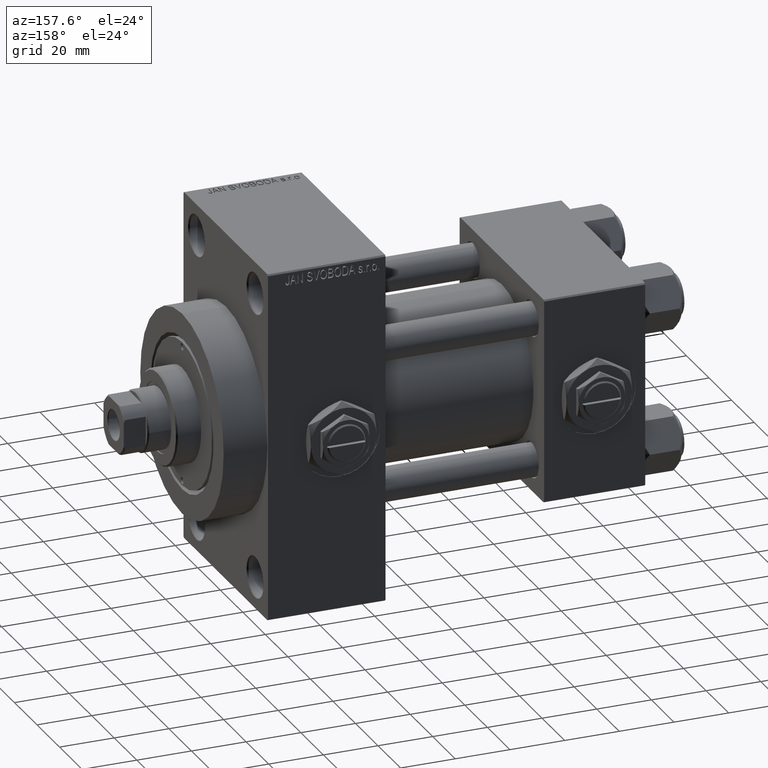
[diagram: clean part render]
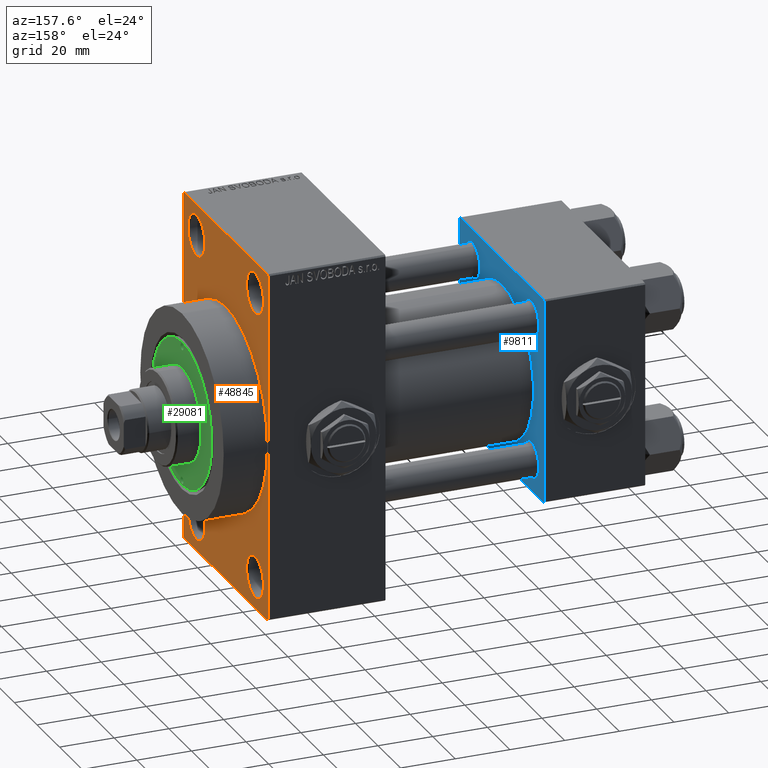
[diagram: same view with three faces highlighted in distinct colors, each labeled with its STEP entity id]
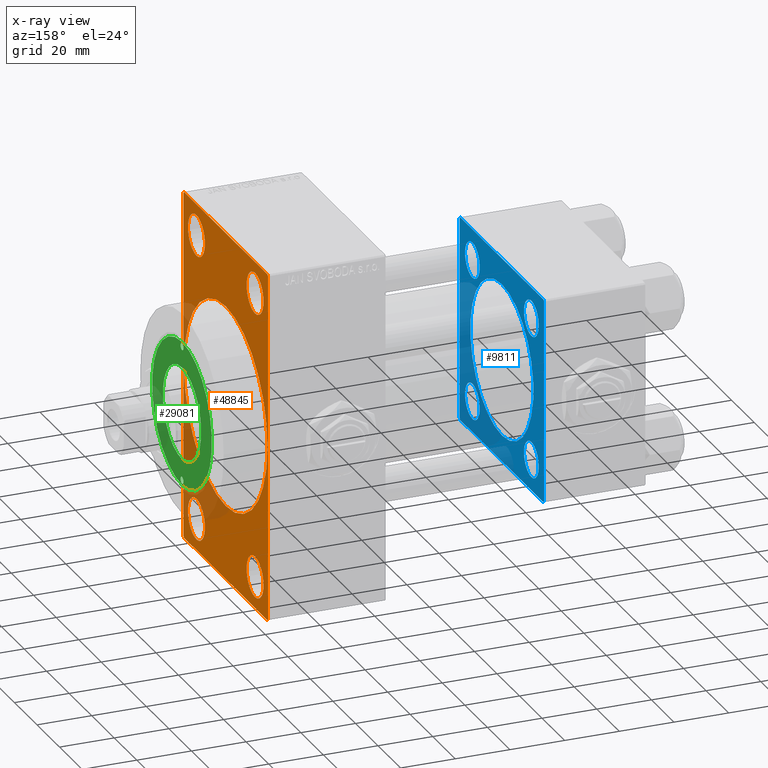
[diagram: x-ray of the same camera — body ghosted, the three highlighted faces saturated]
A machine part, auxiliary view with three faces highlighted in distinct colors.
The next image is the same camera in x-ray (body ghosted, the three faces saturated) — at least one of them is partly hidden behind the body in this view.
Their STEP definitions:

[orange] entity #48845 — the highlighted planar face has unit normal (-1, 0, 0).
#360 = VECTOR ( 'NONE', #18469, 1000.000000000000000 ) ;
#576 = CARTESIAN_POINT ( 'NONE',  ( 138.0000000000000000, -36.99999999999995737, 63.99999999999997158 ) ) ;
#1019 = FACE_BOUND ( 'NONE', #38938, .T. ) ;
#1040 = DIRECTION ( 'NONE',  ( 1.000000000000000000, 0.000000000000000000, 0.000000000000000000 ) ) ;
#1468 = VERTEX_POINT ( 'NONE', #11241 ) ;
#1828 = EDGE_LOOP ( 'NONE', ( #36572, #6687 ) ) ;
#2234 = CARTESIAN_POINT ( 'NONE',  ( 138.0000000000000000, 36.99999999999997158, 63.99999999999998579 ) ) ;
#2302 = VERTEX_POINT ( 'NONE', #34772 ) ;
#3524 = EDGE_CURVE ( 'NONE', #41724, #32050, #30687, .T. ) ;
#3648 = LINE ( 'NONE', #33933, #15017 ) ;
#3793 = ORIENTED_EDGE ( 'NONE', *, *, #21079, .T. ) ;
#4056 = VECTOR ( 'NONE', #42984, 999.9999999999998863 ) ;
#4461 = CARTESIAN_POINT ( 'NONE',  ( 138.0000000000000000, -36.99999999999993605, -64.00000000000001421 ) ) ;
#4527 = FACE_BOUND ( 'NONE', #19885, .T. ) ;
#4776 = FACE_BOUND ( 'NONE', #28141, .T. ) ;
#4916 = CARTESIAN_POINT ( 'NONE',  ( 138.0000000000000000, 26.00000000000000000, 60.00000000000000000 ) ) ;
#5423 = CARTESIAN_POINT ( 'NONE',  ( 138.0000000000000000, 26.00000000000000000, -52.49999999999999289 ) ) ;
#5715 = DIRECTION ( 'NONE',  ( -1.000000000000000000, 0.000000000000000000, -0.000000000000000000 ) ) ;
#5843 = DIRECTION ( 'NONE',  ( -0.000000000000000000, 0.7071067811865573427, 0.7071067811865378028 ) ) ;
#5878 = LINE ( 'NONE', #40393, #36476 ) ;
#6290 = CIRCLE ( 'NONE', #23843, 37.00000000000000000 ) ;
#6687 = ORIENTED_EDGE ( 'NONE', *, *, #26335, .F. ) ;
#6928 = ORIENTED_EDGE ( 'NONE', *, *, #42914, .T. ) ;
#7140 = DIRECTION ( 'NONE',  ( 0.000000000000000000, 0.000000000000000000, 1.000000000000000000 ) ) ;
#7173 = EDGE_CURVE ( 'NONE', #41724, #7918, #5878, .T. ) ;
#7178 = EDGE_CURVE ( 'NONE', #48057, #45820, #14865, .T. ) ;
#7573 = VERTEX_POINT ( 'NONE', #18524 ) ;
#7918 = VERTEX_POINT ( 'NONE', #2234 ) ;
#8529 = VERTEX_POINT ( 'NONE', #21260 ) ;
#8758 = CARTESIAN_POINT ( 'NONE',  ( 138.0000000000000000, 0.000000000000000000, 0.000000000000000000 ) ) ;
#8932 = DIRECTION ( 'NONE',  ( 0.000000000000000000, 0.000000000000000000, 1.000000000000000000 ) ) ;
#9848 = VERTEX_POINT ( 'NONE', #37767 ) ;
#9945 = DIRECTION ( 'NONE',  ( 0.000000000000000000, 0.000000000000000000, 1.000000000000000000 ) ) ;
#10195 = CIRCLE ( 'NONE', #20582, 7.500000000000007105 ) ;
#10752 = ORIENTED_EDGE ( 'NONE', *, *, #14062, .T. ) ;
#10767 = DIRECTION ( 'NONE',  ( -0.000000000000000000, -0.7071067811865524577, -0.7071067811865426878 ) ) ;
#11089 = CIRCLE ( 'NONE', #33500, 7.500000000000007105 ) ;
#11185 = ORIENTED_EDGE ( 'NONE', *, *, #42809, .T. ) ;
#11241 = CARTESIAN_POINT ( 'NONE',  ( 138.0000000000000000, 26.00000000000000000, 44.99999999999998579 ) ) ;
#11892 = CARTESIAN_POINT ( 'NONE',  ( 138.0000000000000000, 26.00000000000000000, -52.49999999999999289 ) ) ;
#11936 = CARTESIAN_POINT ( 'NONE',  ( 138.0000000000000000, -25.99999999999999645, 60.00000000000000711 ) ) ;
#12269 = FACE_OUTER_BOUND ( 'NONE', #44910, .T. ) ;
#12445 = LINE ( 'NONE', #4461, #4056 ) ;
#12565 = VERTEX_POINT ( 'NONE', #16291 ) ;
#13386 = AXIS2_PLACEMENT_3D ( 'NONE', #35904, #36158, #39652 ) ;
#13455 = AXIS2_PLACEMENT_3D ( 'NONE', #38949, #35953, #36199 ) ;
#14062 = EDGE_CURVE ( 'NONE', #45820, #48057, #10195, .T. ) ;
#14452 = AXIS2_PLACEMENT_3D ( 'NONE', #11892, #19894, #35668 ) ;
#14507 = CARTESIAN_POINT ( 'NONE',  ( 138.0000000000000000, -37.49999999999999289, 63.49999999999994316 ) ) ;
#14865 = CIRCLE ( 'NONE', #13386, 7.500000000000007105 ) ;
#14990 = DIRECTION ( 'NONE',  ( -1.000000000000000000, 0.000000000000000000, -0.000000000000000000 ) ) ;
#15017 = VECTOR ( 'NONE', #26907, 1000.000000000000000 ) ;
#15093 = CARTESIAN_POINT ( 'NONE',  ( 138.0000000000000000, -25.99999999999999645, 52.50000000000000000 ) ) ;
#15106 = DIRECTION ( 'NONE',  ( -1.000000000000000000, 0.000000000000000000, -0.000000000000000000 ) ) ;
#15643 = ORIENTED_EDGE ( 'NONE', *, *, #37858, .T. ) ;
#16121 = EDGE_CURVE ( 'NONE', #7918, #34825, #3648, .T. ) ;
#16291 = CARTESIAN_POINT ( 'NONE',  ( 138.0000000000000000, 26.00000000000000000, -44.99999999999998579 ) ) ;
#17149 = DIRECTION ( 'NONE',  ( -1.000000000000000000, 0.000000000000000000, -0.000000000000000000 ) ) ;
#17291 = ORIENTED_EDGE ( 'NONE', *, *, #34773, .F. ) ;
#18004 = ORIENTED_EDGE ( 'NONE', *, *, #22644, .T. ) ;
#18329 = ORIENTED_EDGE ( 'NONE', *, *, #7178, .T. ) ;
#18469 = DIRECTION ( 'NONE',  ( 0.000000000000000000, 0.000000000000000000, -1.000000000000000000 ) ) ;
#18524 = CARTESIAN_POINT ( 'NONE',  ( 138.0000000000000000, -37.49999999999999289, 63.49999999999994316 ) ) ;
#19267 = CIRCLE ( 'NONE', #48851, 7.500000000000007105 ) ;
#19512 = DIRECTION ( 'NONE',  ( 1.000000000000000000, 0.000000000000000000, 0.000000000000000000 ) ) ;
#19885 = EDGE_LOOP ( 'NONE', ( #38308, #15643 ) ) ;
#19894 = DIRECTION ( 'NONE',  ( -1.000000000000000000, 0.000000000000000000, -0.000000000000000000 ) ) ;
#19916 = VECTOR ( 'NONE', #10767, 1000.000000000000000 ) ;
#20582 = AXIS2_PLACEMENT_3D ( 'NONE', #15093, #26384, #23619 ) ;
#20686 = CARTESIAN_POINT ( 'NONE',  ( 138.0000000000000000, 37.49999999999999289, -63.50000000000001421 ) ) ;
#21079 = EDGE_CURVE ( 'NONE', #9848, #2302, #12445, .T. ) ;
#21260 = CARTESIAN_POINT ( 'NONE',  ( 138.0000000000000000, -25.99999999999999645, -44.99999999999998579 ) ) ;
#21501 = AXIS2_PLACEMENT_3D ( 'NONE', #5423, #17149, #8932 ) ;
#21771 = CARTESIAN_POINT ( 'NONE',  ( 138.0000000000000000, 0.000000000000000000, 37.00000000000000000 ) ) ;
#21927 = EDGE_CURVE ( 'NONE', #49408, #8529, #49511, .T. ) ;
#22370 = CARTESIAN_POINT ( 'NONE',  ( 138.0000000000000000, 37.49999999999999289, -64.00000000000000000 ) ) ;
#22644 = EDGE_CURVE ( 'NONE', #23746, #32050, #39865, .T. ) ;
#22858 = LINE ( 'NONE', #22370, #44538 ) ;
#23264 = CIRCLE ( 'NONE', #14452, 7.500000000000007105 ) ;
#23619 = DIRECTION ( 'NONE',  ( 0.000000000000000000, 0.000000000000000000, 1.000000000000000000 ) ) ;
#23746 = VERTEX_POINT ( 'NONE', #24019 ) ;
#23843 = AXIS2_PLACEMENT_3D ( 'NONE', #31567, #1040, #35823 ) ;
#24019 = CARTESIAN_POINT ( 'NONE',  ( 138.0000000000000000, 36.99999999999999289, -64.00000000000000000 ) ) ;
#24624 = LINE ( 'NONE', #14507, #19916 ) ;
#25133 = VECTOR ( 'NONE', #45711, 1000.000000000000000 ) ;
#25249 = EDGE_CURVE ( 'NONE', #12565, #30536, #23264, .T. ) ;
#26326 = VECTOR ( 'NONE', #5843, 1000.000000000000000 ) ;
#26335 = EDGE_CURVE ( 'NONE', #46900, #44375, #40885, .T. ) ;
#26384 = DIRECTION ( 'NONE',  ( -1.000000000000000000, 0.000000000000000000, -0.000000000000000000 ) ) ;
#26702 = EDGE_LOOP ( 'NONE', ( #40057, #45994 ) ) ;
#26907 = DIRECTION ( 'NONE',  ( 0.000000000000000000, -1.000000000000000000, -1.850371707708594563E-16 ) ) ;
#28077 = AXIS2_PLACEMENT_3D ( 'NONE', #8758, #19512, #31530 ) ;
#28141 = EDGE_LOOP ( 'NONE', ( #10752, #18329 ) ) ;
#29252 = LINE ( 'NONE', #49003, #360 ) ;
#30536 = VERTEX_POINT ( 'NONE', #36928 ) ;
#30687 = LINE ( 'NONE', #45954, #25133 ) ;
#31312 = CARTESIAN_POINT ( 'NONE',  ( 138.0000000000000000, 4.531193156845206793E-15, -37.00000000000000000 ) ) ;
#31530 = DIRECTION ( 'NONE',  ( 0.000000000000000000, 0.000000000000000000, -1.000000000000000000 ) ) ;
#31567 = CARTESIAN_POINT ( 'NONE',  ( 138.0000000000000000, 0.000000000000000000, 0.000000000000000000 ) ) ;
#31950 = AXIS2_PLACEMENT_3D ( 'NONE', #43494, #5715, #9945 ) ;
#32050 = VERTEX_POINT ( 'NONE', #20686 ) ;
#32595 = ORIENTED_EDGE ( 'NONE', *, *, #7173, .T. ) ;
#32638 = DIRECTION ( 'NONE',  ( 0.000000000000000000, -0.7071067811865672237, 0.7071067811865279218 ) ) ;
#32987 = EDGE_CURVE ( 'NONE', #7573, #9848, #29252, .T. ) ;
#33201 = ORIENTED_EDGE ( 'NONE', *, *, #16121, .T. ) ;
#33500 = AXIS2_PLACEMENT_3D ( 'NONE', #34043, #14990, #45303 ) ;
#33826 = ORIENTED_EDGE ( 'NONE', *, *, #32987, .T. ) ;
#33933 = CARTESIAN_POINT ( 'NONE',  ( 138.0000000000000000, 37.50000000000000000, 63.99999999999998579 ) ) ;
#34043 = CARTESIAN_POINT ( 'NONE',  ( 138.0000000000000000, -25.99999999999999645, -52.49999999999999289 ) ) ;
#34685 = ORIENTED_EDGE ( 'NONE', *, *, #3524, .F. ) ;
#34772 = CARTESIAN_POINT ( 'NONE',  ( 138.0000000000000000, -36.99999999999993605, -64.00000000000001421 ) ) ;
#34773 = EDGE_CURVE ( 'NONE', #23746, #2302, #22858, .T. ) ;
#34825 = VERTEX_POINT ( 'NONE', #576 ) ;
#35052 = DIRECTION ( 'NONE',  ( -1.000000000000000000, 0.000000000000000000, -0.000000000000000000 ) ) ;
#35556 = CARTESIAN_POINT ( 'NONE',  ( 138.0000000000000000, 0.000000000000000000, 0.000000000000000000 ) ) ;
#35668 = DIRECTION ( 'NONE',  ( 0.000000000000000000, 0.000000000000000000, 1.000000000000000000 ) ) ;
#35823 = DIRECTION ( 'NONE',  ( 0.000000000000000000, 0.000000000000000000, -1.000000000000000000 ) ) ;
#35904 = CARTESIAN_POINT ( 'NONE',  ( 138.0000000000000000, -25.99999999999999645, 52.50000000000000000 ) ) ;
#35953 = DIRECTION ( 'NONE',  ( -1.000000000000000000, 0.000000000000000000, -0.000000000000000000 ) ) ;
#36158 = DIRECTION ( 'NONE',  ( -1.000000000000000000, 0.000000000000000000, -0.000000000000000000 ) ) ;
#36199 = DIRECTION ( 'NONE',  ( 0.000000000000000000, 0.000000000000000000, 1.000000000000000000 ) ) ;
#36359 = CARTESIAN_POINT ( 'NONE',  ( 138.0000000000000000, -25.99999999999999645, 44.99999999999999289 ) ) ;
#36476 = VECTOR ( 'NONE', #32638, 1000.000000000000000 ) ;
#36572 = ORIENTED_EDGE ( 'NONE', *, *, #40999, .F. ) ;
#36928 = CARTESIAN_POINT ( 'NONE',  ( 138.0000000000000000, 26.00000000000000000, -60.00000000000000000 ) ) ;
#37638 = DIRECTION ( 'NONE',  ( 0.000000000000000000, -1.000000000000000000, -1.850371707708594563E-16 ) ) ;
#37767 = CARTESIAN_POINT ( 'NONE',  ( 138.0000000000000000, -37.49999999999999289, -63.49999999999997158 ) ) ;
#37858 = EDGE_CURVE ( 'NONE', #44747, #1468, #46222, .T. ) ;
#38308 = ORIENTED_EDGE ( 'NONE', *, *, #47485, .T. ) ;
#38876 = EDGE_CURVE ( 'NONE', #30536, #12565, #43074, .T. ) ;
#38938 = EDGE_LOOP ( 'NONE', ( #46018, #6928 ) ) ;
#38949 = CARTESIAN_POINT ( 'NONE',  ( 138.0000000000000000, 26.00000000000000000, 52.49999999999999289 ) ) ;
#39300 = PLANE ( 'NONE',  #44103 ) ;
#39609 = CARTESIAN_POINT ( 'NONE',  ( 138.0000000000000000, -25.99999999999999645, -60.00000000000000000 ) ) ;
#39652 = DIRECTION ( 'NONE',  ( 0.000000000000000000, 0.000000000000000000, 1.000000000000000000 ) ) ;
#39865 = LINE ( 'NONE', #47863, #26326 ) ;
#40057 = ORIENTED_EDGE ( 'NONE', *, *, #38876, .T. ) ;
#40393 = CARTESIAN_POINT ( 'NONE',  ( 138.0000000000000000, 36.99999999999997158, 63.99999999999998579 ) ) ;
#40885 = CIRCLE ( 'NONE', #28077, 37.00000000000000000 ) ;
#40999 = EDGE_CURVE ( 'NONE', #44375, #46900, #6290, .T. ) ;
#41724 = VERTEX_POINT ( 'NONE', #49347 ) ;
#41915 = CARTESIAN_POINT ( 'NONE',  ( 138.0000000000000000, 26.00000000000000000, 52.49999999999999289 ) ) ;
#42806 = DIRECTION ( 'NONE',  ( -0.000000000000000000, 0.000000000000000000, 1.000000000000000000 ) ) ;
#42809 = EDGE_CURVE ( 'NONE', #34825, #7573, #24624, .T. ) ;
#42914 = EDGE_CURVE ( 'NONE', #8529, #49408, #11089, .T. ) ;
#42984 = DIRECTION ( 'NONE',  ( 0.000000000000000000, 0.7071067811865574537, -0.7071067811865376918 ) ) ;
#43074 = CIRCLE ( 'NONE', #21501, 7.500000000000007105 ) ;
#43494 = CARTESIAN_POINT ( 'NONE',  ( 138.0000000000000000, -25.99999999999999645, -52.49999999999999289 ) ) ;
#44103 = AXIS2_PLACEMENT_3D ( 'NONE', #35556, #35052, #42806 ) ;
#44375 = VERTEX_POINT ( 'NONE', #21771 ) ;
#44538 = VECTOR ( 'NONE', #37638, 1000.000000000000000 ) ;
#44747 = VERTEX_POINT ( 'NONE', #4916 ) ;
#44910 = EDGE_LOOP ( 'NONE', ( #33826, #3793, #17291, #18004, #34685, #32595, #33201, #11185 ) ) ;
#45303 = DIRECTION ( 'NONE',  ( 0.000000000000000000, 0.000000000000000000, 1.000000000000000000 ) ) ;
#45711 = DIRECTION ( 'NONE',  ( 0.000000000000000000, -5.421010862427522170E-17, -1.000000000000000000 ) ) ;
#45820 = VERTEX_POINT ( 'NONE', #36359 ) ;
#45954 = CARTESIAN_POINT ( 'NONE',  ( 138.0000000000000000, 37.50000000000000000, 63.99999999999998579 ) ) ;
#45994 = ORIENTED_EDGE ( 'NONE', *, *, #25249, .T. ) ;
#46018 = ORIENTED_EDGE ( 'NONE', *, *, #21927, .T. ) ;
#46066 = FACE_BOUND ( 'NONE', #26702, .T. ) ;
#46222 = CIRCLE ( 'NONE', #13455, 7.500000000000007105 ) ;
#46556 = FACE_BOUND ( 'NONE', #1828, .T. ) ;
#46900 = VERTEX_POINT ( 'NONE', #31312 ) ;
#47485 = EDGE_CURVE ( 'NONE', #1468, #44747, #19267, .T. ) ;
#47863 = CARTESIAN_POINT ( 'NONE',  ( 138.0000000000000000, 37.49999999999999289, -63.50000000000001421 ) ) ;
#48057 = VERTEX_POINT ( 'NONE', #11936 ) ;
#48845 = ADVANCED_FACE ( 'NONE', ( #4776, #1019, #46066, #4527, #46556, #12269 ), #39300, .F. ) ;
#48851 = AXIS2_PLACEMENT_3D ( 'NONE', #41915, #15106, #7140 ) ;
#49003 = CARTESIAN_POINT ( 'NONE',  ( 138.0000000000000000, -37.49999999999999289, 63.99999999999997158 ) ) ;
#49347 = CARTESIAN_POINT ( 'NONE',  ( 138.0000000000000000, 37.50000000000000000, 63.49999999999998579 ) ) ;
#49408 = VERTEX_POINT ( 'NONE', #39609 ) ;
#49511 = CIRCLE ( 'NONE', #31950, 7.500000000000007105 ) ;

[blue] entity #9811 — the highlighted planar face has unit normal (-1, 0, 0).
#37 = VERTEX_POINT ( 'NONE', #31503 ) ;
#134 = CARTESIAN_POINT ( 'NONE',  ( 37.00000000000000000, 8.269258236473776482E-16, -28.00000000000000000 ) ) ;
#382 = DIRECTION ( 'NONE',  ( 0.000000000000000000, 0.000000000000000000, 1.000000000000000000 ) ) ;
#725 = DIRECTION ( 'NONE',  ( 0.000000000000000000, 0.000000000000000000, 1.000000000000000000 ) ) ;
#954 = DIRECTION ( 'NONE',  ( 0.000000000000000000, 0.000000000000000000, 1.000000000000000000 ) ) ;
#1087 = VERTEX_POINT ( 'NONE', #21329 ) ;
#1208 = ORIENTED_EDGE ( 'NONE', *, *, #35761, .T. ) ;
#1439 = ORIENTED_EDGE ( 'NONE', *, *, #35737, .T. ) ;
#1570 = ORIENTED_EDGE ( 'NONE', *, *, #44514, .T. ) ;
#1682 = EDGE_LOOP ( 'NONE', ( #1570, #11435 ) ) ;
#2515 = CARTESIAN_POINT ( 'NONE',  ( 37.00000000000000000, -2.602085213965210642E-15, 28.00000000000000000 ) ) ;
#2532 = LINE ( 'NONE', #33799, #2980 ) ;
#2980 = VECTOR ( 'NONE', #21543, 1000.000000000000114 ) ;
#3361 = ORIENTED_EDGE ( 'NONE', *, *, #21063, .T. ) ;
#3730 = DIRECTION ( 'NONE',  ( -1.000000000000000000, 0.000000000000000000, -0.000000000000000000 ) ) ;
#3999 = AXIS2_PLACEMENT_3D ( 'NONE', #4725, #49518, #19978 ) ;
#4055 = CARTESIAN_POINT ( 'NONE',  ( 37.00000000000000000, 26.14999999999999858, -19.65000000000000213 ) ) ;
#4146 = DIRECTION ( 'NONE',  ( 1.000000000000000000, -0.000000000000000000, 0.000000000000000000 ) ) ;
#4186 = VERTEX_POINT ( 'NONE', #4055 ) ;
#4269 = CARTESIAN_POINT ( 'NONE',  ( 37.00000000000000000, 37.49999999999999289, 37.00000000000000000 ) ) ;
#4725 = CARTESIAN_POINT ( 'NONE',  ( 37.00000000000000000, 26.14999999999999858, 26.15000000000000213 ) ) ;
#5705 = EDGE_CURVE ( 'NONE', #26389, #38803, #23636, .T. ) ;
#6788 = EDGE_LOOP ( 'NONE', ( #1208, #1439 ) ) ;
#6944 = CARTESIAN_POINT ( 'NONE',  ( 37.00000000000000000, -37.00000000000002132, -37.50000000000000711 ) ) ;
#7201 = VECTOR ( 'NONE', #42196, 1000.000000000000000 ) ;
#7243 = FACE_BOUND ( 'NONE', #25469, .T. ) ;
#7591 = EDGE_CURVE ( 'NONE', #12818, #19381, #19777, .T. ) ;
#7709 = ORIENTED_EDGE ( 'NONE', *, *, #13628, .T. ) ;
#7940 = CIRCLE ( 'NONE', #19213, 6.500000000000057732 ) ;
#8143 = EDGE_CURVE ( 'NONE', #28828, #46487, #40456, .T. ) ;
#9113 = DIRECTION ( 'NONE',  ( 0.000000000000000000, -0.7071067811865474617, 0.7071067811865474617 ) ) ;
#9811 = ADVANCED_FACE ( 'NONE', ( #7243, #30012, #30253, #45766, #45276, #10988 ), #38007, .F. ) ;
#10002 = DIRECTION ( 'NONE',  ( 0.000000000000000000, -1.000000000000000000, -9.251858538542972814E-17 ) ) ;
#10409 = VERTEX_POINT ( 'NONE', #17125 ) ;
#10948 = CARTESIAN_POINT ( 'NONE',  ( 37.00000000000000000, 37.49999999999999289, -36.99999999999998579 ) ) ;
#10988 = FACE_OUTER_BOUND ( 'NONE', #47695, .T. ) ;
#10995 = CARTESIAN_POINT ( 'NONE',  ( 37.00000000000000000, -26.14999999999999147, 26.15000000000000924 ) ) ;
#11435 = ORIENTED_EDGE ( 'NONE', *, *, #32070, .T. ) ;
#11514 = ORIENTED_EDGE ( 'NONE', *, *, #15388, .T. ) ;
#11957 = VECTOR ( 'NONE', #38355, 1000.000000000000114 ) ;
#12644 = LINE ( 'NONE', #31675, #7201 ) ;
#12818 = VERTEX_POINT ( 'NONE', #23455 ) ;
#12859 = CARTESIAN_POINT ( 'NONE',  ( 37.00000000000000000, 36.99999999999999289, 37.50000000000000000 ) ) ;
#13303 = VECTOR ( 'NONE', #44458, 1000.000000000000000 ) ;
#13628 = EDGE_CURVE ( 'NONE', #38312, #4186, #26160, .T. ) ;
#14237 = EDGE_CURVE ( 'NONE', #37, #47306, #2532, .T. ) ;
#14487 = DIRECTION ( 'NONE',  ( 0.000000000000000000, 0.000000000000000000, 1.000000000000000000 ) ) ;
#14582 = DIRECTION ( 'NONE',  ( 0.000000000000000000, 0.000000000000000000, 1.000000000000000000 ) ) ;
#14995 = DIRECTION ( 'NONE',  ( 0.000000000000000000, 0.000000000000000000, 1.000000000000000000 ) ) ;
#15388 = EDGE_CURVE ( 'NONE', #10409, #28828, #21862, .T. ) ;
#15751 = CIRCLE ( 'NONE', #43765, 6.500000000000064837 ) ;
#16150 = LINE ( 'NONE', #20405, #22389 ) ;
#16438 = VERTEX_POINT ( 'NONE', #41868 ) ;
#16952 = CARTESIAN_POINT ( 'NONE',  ( 37.00000000000000000, 26.14999999999999858, 19.64999999999999858 ) ) ;
#17125 = CARTESIAN_POINT ( 'NONE',  ( 37.00000000000000000, -37.50000000000000711, 36.99999999999999289 ) ) ;
#17361 = CIRCLE ( 'NONE', #37372, 6.500000000000064837 ) ;
#17709 = ORIENTED_EDGE ( 'NONE', *, *, #18479, .F. ) ;
#17782 = DIRECTION ( 'NONE',  ( -1.000000000000000000, 0.000000000000000000, -0.000000000000000000 ) ) ;
#18091 = DIRECTION ( 'NONE',  ( 0.000000000000000000, 9.251858538542971581E-17, -1.000000000000000000 ) ) ;
#18164 = AXIS2_PLACEMENT_3D ( 'NONE', #29063, #17782, #22293 ) ;
#18290 = VERTEX_POINT ( 'NONE', #40721 ) ;
#18479 = EDGE_CURVE ( 'NONE', #26389, #47306, #12644, .T. ) ;
#18594 = EDGE_LOOP ( 'NONE', ( #7709, #38864 ) ) ;
#18973 = DIRECTION ( 'NONE',  ( -0.000000000000000000, 0.000000000000000000, 1.000000000000000000 ) ) ;
#18983 = DIRECTION ( 'NONE',  ( -1.000000000000000000, 0.000000000000000000, -0.000000000000000000 ) ) ;
#19137 = CARTESIAN_POINT ( 'NONE',  ( 37.00000000000000000, -2.602085213965210642E-15, 0.000000000000000000 ) ) ;
#19213 = AXIS2_PLACEMENT_3D ( 'NONE', #38984, #42500, #954 ) ;
#19237 = CARTESIAN_POINT ( 'NONE',  ( 37.00000000000000000, -26.14999999999999147, 26.15000000000000924 ) ) ;
#19381 = VERTEX_POINT ( 'NONE', #40675 ) ;
#19777 = CIRCLE ( 'NONE', #18164, 6.500000000000057732 ) ;
#19978 = DIRECTION ( 'NONE',  ( 0.000000000000000000, 0.000000000000000000, 1.000000000000000000 ) ) ;
#20175 = ORIENTED_EDGE ( 'NONE', *, *, #36402, .F. ) ;
#20405 = CARTESIAN_POINT ( 'NONE',  ( 37.00000000000000000, 37.49999999999999289, 37.50000000000000000 ) ) ;
#21063 = EDGE_CURVE ( 'NONE', #19381, #12818, #7940, .T. ) ;
#21329 = CARTESIAN_POINT ( 'NONE',  ( 37.00000000000000000, -26.14999999999999147, 32.65000000000007674 ) ) ;
#21543 = DIRECTION ( 'NONE',  ( -0.000000000000000000, 0.7071067811865474617, 0.7071067811865474617 ) ) ;
#21862 = LINE ( 'NONE', #25853, #40594 ) ;
#22293 = DIRECTION ( 'NONE',  ( 0.000000000000000000, 0.000000000000000000, 1.000000000000000000 ) ) ;
#22389 = VECTOR ( 'NONE', #46939, 1000.000000000000000 ) ;
#22855 = ORIENTED_EDGE ( 'NONE', *, *, #25612, .F. ) ;
#23455 = CARTESIAN_POINT ( 'NONE',  ( 37.00000000000000000, -26.14999999999999147, -32.65000000000006963 ) ) ;
#23636 = LINE ( 'NONE', #12859, #46781 ) ;
#24608 = DIRECTION ( 'NONE',  ( 0.000000000000000000, 0.000000000000000000, 1.000000000000000000 ) ) ;
#24860 = CARTESIAN_POINT ( 'NONE',  ( 37.00000000000000000, -2.602085213965210642E-15, 0.000000000000000000 ) ) ;
#25441 = ORIENTED_EDGE ( 'NONE', *, *, #40129, .T. ) ;
#25469 = EDGE_LOOP ( 'NONE', ( #29764, #3361 ) ) ;
#25612 = EDGE_CURVE ( 'NONE', #37, #46487, #32780, .T. ) ;
#25853 = CARTESIAN_POINT ( 'NONE',  ( 37.00000000000000000, -37.50000000000000711, 37.49999999999999289 ) ) ;
#26160 = CIRCLE ( 'NONE', #49335, 6.500000000000002665 ) ;
#26389 = VERTEX_POINT ( 'NONE', #4269 ) ;
#26690 = ORIENTED_EDGE ( 'NONE', *, *, #39795, .F. ) ;
#27946 = DIRECTION ( 'NONE',  ( -1.000000000000000000, 0.000000000000000000, -0.000000000000000000 ) ) ;
#28111 = DIRECTION ( 'NONE',  ( 1.000000000000000000, -0.000000000000000000, 0.000000000000000000 ) ) ;
#28197 = CARTESIAN_POINT ( 'NONE',  ( 37.00000000000000000, 26.14999999999999858, 26.15000000000000213 ) ) ;
#28606 = AXIS2_PLACEMENT_3D ( 'NONE', #24860, #28111, #24608 ) ;
#28709 = CIRCLE ( 'NONE', #41509, 28.00000000000000000 ) ;
#28828 = VERTEX_POINT ( 'NONE', #40225 ) ;
#29063 = CARTESIAN_POINT ( 'NONE',  ( 37.00000000000000000, -26.14999999999999147, -26.15000000000000924 ) ) ;
#29192 = CARTESIAN_POINT ( 'NONE',  ( 37.00000000000000000, -37.00000000000002132, -37.50000000000000711 ) ) ;
#29261 = CARTESIAN_POINT ( 'NONE',  ( 37.00000000000000000, 37.49999999999999289, -37.50000000000000000 ) ) ;
#29764 = ORIENTED_EDGE ( 'NONE', *, *, #7591, .T. ) ;
#30012 = FACE_BOUND ( 'NONE', #18594, .T. ) ;
#30253 = FACE_BOUND ( 'NONE', #6788, .T. ) ;
#30779 = CARTESIAN_POINT ( 'NONE',  ( 37.00000000000000000, 26.14999999999999858, -26.15000000000000213 ) ) ;
#31213 = DIRECTION ( 'NONE',  ( 0.000000000000000000, 0.000000000000000000, 1.000000000000000000 ) ) ;
#31253 = DIRECTION ( 'NONE',  ( -1.000000000000000000, 0.000000000000000000, -0.000000000000000000 ) ) ;
#31503 = CARTESIAN_POINT ( 'NONE',  ( 37.00000000000000000, 36.99999999999997868, -37.50000000000000000 ) ) ;
#31675 = CARTESIAN_POINT ( 'NONE',  ( 37.00000000000000000, 37.49999999999999289, 37.50000000000000000 ) ) ;
#31789 = CIRCLE ( 'NONE', #28606, 28.00000000000000000 ) ;
#31962 = CIRCLE ( 'NONE', #3999, 6.500000000000002665 ) ;
#32070 = EDGE_CURVE ( 'NONE', #16438, #45527, #38687, .T. ) ;
#32305 = AXIS2_PLACEMENT_3D ( 'NONE', #28197, #27946, #31213 ) ;
#32339 = VERTEX_POINT ( 'NONE', #134 ) ;
#32780 = LINE ( 'NONE', #29261, #48028 ) ;
#33162 = EDGE_LOOP ( 'NONE', ( #20175, #26690 ) ) ;
#33775 = EDGE_CURVE ( 'NONE', #4186, #38312, #42066, .T. ) ;
#33799 = CARTESIAN_POINT ( 'NONE',  ( 37.00000000000000000, 37.49999999999999289, -36.99999999999998579 ) ) ;
#33942 = CARTESIAN_POINT ( 'NONE',  ( 37.00000000000000000, -37.00000000000000711, 37.49999999999999289 ) ) ;
#34030 = AXIS2_PLACEMENT_3D ( 'NONE', #49269, #3730, #18973 ) ;
#34359 = CARTESIAN_POINT ( 'NONE',  ( 37.00000000000000000, -37.50000000000000711, 36.99999999999999289 ) ) ;
#34364 = DIRECTION ( 'NONE',  ( -1.000000000000000000, 0.000000000000000000, -0.000000000000000000 ) ) ;
#34447 = VERTEX_POINT ( 'NONE', #33942 ) ;
#35573 = VERTEX_POINT ( 'NONE', #2515 ) ;
#35737 = EDGE_CURVE ( 'NONE', #1087, #18290, #17361, .T. ) ;
#35761 = EDGE_CURVE ( 'NONE', #18290, #1087, #15751, .T. ) ;
#36379 = CARTESIAN_POINT ( 'NONE',  ( 37.00000000000000000, 26.14999999999999858, -32.65000000000000568 ) ) ;
#36402 = EDGE_CURVE ( 'NONE', #35573, #32339, #31789, .T. ) ;
#36787 = ORIENTED_EDGE ( 'NONE', *, *, #5705, .T. ) ;
#37372 = AXIS2_PLACEMENT_3D ( 'NONE', #10995, #18983, #14487 ) ;
#38007 = PLANE ( 'NONE',  #34030 ) ;
#38312 = VERTEX_POINT ( 'NONE', #36379 ) ;
#38355 = DIRECTION ( 'NONE',  ( -0.000000000000000000, -0.7071067811865474617, -0.7071067811865474617 ) ) ;
#38687 = CIRCLE ( 'NONE', #32305, 6.500000000000002665 ) ;
#38803 = VERTEX_POINT ( 'NONE', #43706 ) ;
#38848 = AXIS2_PLACEMENT_3D ( 'NONE', #45375, #34364, #14582 ) ;
#38864 = ORIENTED_EDGE ( 'NONE', *, *, #33775, .T. ) ;
#38984 = CARTESIAN_POINT ( 'NONE',  ( 37.00000000000000000, -26.14999999999999147, -26.15000000000000924 ) ) ;
#39425 = ORIENTED_EDGE ( 'NONE', *, *, #44780, .T. ) ;
#39795 = EDGE_CURVE ( 'NONE', #32339, #35573, #28709, .T. ) ;
#40129 = EDGE_CURVE ( 'NONE', #34447, #10409, #46356, .T. ) ;
#40225 = CARTESIAN_POINT ( 'NONE',  ( 37.00000000000000000, -37.50000000000000000, -37.00000000000003553 ) ) ;
#40456 = LINE ( 'NONE', #29192, #13303 ) ;
#40594 = VECTOR ( 'NONE', #18091, 1000.000000000000000 ) ;
#40675 = CARTESIAN_POINT ( 'NONE',  ( 37.00000000000000000, -26.14999999999999147, -19.64999999999995239 ) ) ;
#40721 = CARTESIAN_POINT ( 'NONE',  ( 37.00000000000000000, -26.14999999999999147, 19.64999999999994529 ) ) ;
#41509 = AXIS2_PLACEMENT_3D ( 'NONE', #19137, #4146, #382 ) ;
#41868 = CARTESIAN_POINT ( 'NONE',  ( 37.00000000000000000, 26.14999999999999858, 32.65000000000001279 ) ) ;
#42066 = CIRCLE ( 'NONE', #38848, 6.500000000000002665 ) ;
#42196 = DIRECTION ( 'NONE',  ( 0.000000000000000000, 0.000000000000000000, -1.000000000000000000 ) ) ;
#42500 = DIRECTION ( 'NONE',  ( -1.000000000000000000, 0.000000000000000000, -0.000000000000000000 ) ) ;
#43706 = CARTESIAN_POINT ( 'NONE',  ( 37.00000000000000000, 36.99999999999999289, 37.50000000000000000 ) ) ;
#43765 = AXIS2_PLACEMENT_3D ( 'NONE', #19237, #31253, #725 ) ;
#43963 = ORIENTED_EDGE ( 'NONE', *, *, #14237, .T. ) ;
#44458 = DIRECTION ( 'NONE',  ( 0.000000000000000000, 0.7071067811865524577, -0.7071067811865426878 ) ) ;
#44514 = EDGE_CURVE ( 'NONE', #45527, #16438, #31962, .T. ) ;
#44662 = ORIENTED_EDGE ( 'NONE', *, *, #8143, .T. ) ;
#44780 = EDGE_CURVE ( 'NONE', #38803, #34447, #16150, .T. ) ;
#45276 = FACE_BOUND ( 'NONE', #33162, .T. ) ;
#45375 = CARTESIAN_POINT ( 'NONE',  ( 37.00000000000000000, 26.14999999999999858, -26.15000000000000213 ) ) ;
#45527 = VERTEX_POINT ( 'NONE', #16952 ) ;
#45766 = FACE_BOUND ( 'NONE', #1682, .T. ) ;
#46356 = LINE ( 'NONE', #34359, #11957 ) ;
#46487 = VERTEX_POINT ( 'NONE', #6944 ) ;
#46781 = VECTOR ( 'NONE', #9113, 1000.000000000000114 ) ;
#46939 = DIRECTION ( 'NONE',  ( 0.000000000000000000, -1.000000000000000000, -9.251858538542971581E-17 ) ) ;
#47306 = VERTEX_POINT ( 'NONE', #10948 ) ;
#47695 = EDGE_LOOP ( 'NONE', ( #22855, #43963, #17709, #36787, #39425, #25441, #11514, #44662 ) ) ;
#48028 = VECTOR ( 'NONE', #10002, 1000.000000000000000 ) ;
#49269 = CARTESIAN_POINT ( 'NONE',  ( 37.00000000000000000, 0.000000000000000000, 0.000000000000000000 ) ) ;
#49302 = DIRECTION ( 'NONE',  ( -1.000000000000000000, 0.000000000000000000, -0.000000000000000000 ) ) ;
#49335 = AXIS2_PLACEMENT_3D ( 'NONE', #30779, #49302, #14995 ) ;
#49518 = DIRECTION ( 'NONE',  ( -1.000000000000000000, 0.000000000000000000, -0.000000000000000000 ) ) ;

[green] entity #29081 — the highlighted planar face has unit normal (1, -0, -0).
#304 = CARTESIAN_POINT ( 'NONE',  ( 0.000000000000000000, 0.000000000000000000, 43.25999999999999801 ) ) ;
#503 = DIRECTION ( 'NONE',  ( 1.000000000000000000, 0.000000000000000000, 0.000000000000000000 ) ) ;
#1973 = AXIS2_PLACEMENT_3D ( 'NONE', #33144, #36403, #47657 ) ;
#3245 = FACE_BOUND ( 'NONE', #44581, .T. ) ;
#3492 = FACE_BOUND ( 'NONE', #39873, .T. ) ;
#3737 = FACE_BOUND ( 'NONE', #12532, .T. ) ;
#4962 = CIRCLE ( 'NONE', #36113, 26.50000000000000355 ) ;
#5735 = ORIENTED_EDGE ( 'NONE', *, *, #22009, .F. ) ;
#6295 = CARTESIAN_POINT ( 'NONE',  ( 26.50000000000000355, 3.245314017740486554E-15, 43.25999999999999801 ) ) ;
#6608 = CARTESIAN_POINT ( 'NONE',  ( -23.50000000000000355, 0.000000000000000000, 43.25999999999999801 ) ) ;
#6878 = EDGE_CURVE ( 'NONE', #48154, #22807, #34854, .T. ) ;
#9138 = DIRECTION ( 'NONE',  ( 0.000000000000000000, 0.000000000000000000, 1.000000000000000000 ) ) ;
#10316 = CIRCLE ( 'NONE', #29506, 1.249999999999997558 ) ;
#11396 = AXIS2_PLACEMENT_3D ( 'NONE', #37525, #18736, #30504 ) ;
#12156 = CARTESIAN_POINT ( 'NONE',  ( 24.75000000000000000, 0.000000000000000000, 43.25999999999999801 ) ) ;
#12221 = ORIENTED_EDGE ( 'NONE', *, *, #35175, .F. ) ;
#12532 = EDGE_LOOP ( 'NONE', ( #25999, #36518 ) ) ;
#12641 = VERTEX_POINT ( 'NONE', #44560 ) ;
#12792 = AXIS2_PLACEMENT_3D ( 'NONE', #43399, #27873, #20618 ) ;
#13473 = DIRECTION ( 'NONE',  ( 1.000000000000000000, 0.000000000000000000, 0.000000000000000000 ) ) ;
#13926 = CARTESIAN_POINT ( 'NONE',  ( 24.75000000000000000, 0.000000000000000000, 43.25999999999999801 ) ) ;
#14201 = VERTEX_POINT ( 'NONE', #16090 ) ;
#14900 = DIRECTION ( 'NONE',  ( 1.000000000000000000, 0.000000000000000000, 0.000000000000000000 ) ) ;
#16090 = CARTESIAN_POINT ( 'NONE',  ( 26.00000000000000000, 0.000000000000000000, 43.25999999999999801 ) ) ;
#16233 = CARTESIAN_POINT ( 'NONE',  ( -26.50000000000000355, 0.000000000000000000, 43.25999999999999801 ) ) ;
#16935 = DIRECTION ( 'NONE',  ( 1.000000000000000000, 0.000000000000000000, 0.000000000000000000 ) ) ;
#18736 = DIRECTION ( 'NONE',  ( 0.000000000000000000, 0.000000000000000000, 1.000000000000000000 ) ) ;
#18916 = DIRECTION ( 'NONE',  ( -0.000000000000000000, -0.000000000000000000, 1.000000000000000000 ) ) ;
#19771 = AXIS2_PLACEMENT_3D ( 'NONE', #12156, #18916, #14900 ) ;
#20618 = DIRECTION ( 'NONE',  ( 1.000000000000000000, 0.000000000000000000, 0.000000000000000000 ) ) ;
#21203 = DIRECTION ( 'NONE',  ( -0.000000000000000000, -0.000000000000000000, 1.000000000000000000 ) ) ;
#22009 = EDGE_CURVE ( 'NONE', #28789, #14201, #44734, .T. ) ;
#22286 = CARTESIAN_POINT ( 'NONE',  ( 0.000000000000000000, 0.000000000000000000, 43.25999999999999801 ) ) ;
#22807 = VERTEX_POINT ( 'NONE', #36850 ) ;
#23011 = EDGE_CURVE ( 'NONE', #22807, #48154, #44769, .T. ) ;
#23506 = VERTEX_POINT ( 'NONE', #6295 ) ;
#24226 = VERTEX_POINT ( 'NONE', #6608 ) ;
#24399 = DIRECTION ( 'NONE',  ( 1.000000000000000000, 0.000000000000000000, 0.000000000000000000 ) ) ;
#25057 = DIRECTION ( 'NONE',  ( 1.000000000000000000, 0.000000000000000000, 0.000000000000000000 ) ) ;
#25999 = ORIENTED_EDGE ( 'NONE', *, *, #6878, .F. ) ;
#26057 = ORIENTED_EDGE ( 'NONE', *, *, #33657, .F. ) ;
#27873 = DIRECTION ( 'NONE',  ( 0.000000000000000000, 0.000000000000000000, 1.000000000000000000 ) ) ;
#28478 = ORIENTED_EDGE ( 'NONE', *, *, #48347, .T. ) ;
#28731 = AXIS2_PLACEMENT_3D ( 'NONE', #13926, #21203, #16935 ) ;
#28789 = VERTEX_POINT ( 'NONE', #44224 ) ;
#29054 = CARTESIAN_POINT ( 'NONE',  ( -24.75000000000000000, 0.000000000000000000, 43.25999999999999801 ) ) ;
#29081 = ADVANCED_FACE ( 'NONE', ( #3245, #3492, #3737, #45772 ), #34266, .T. ) ;
#29506 = AXIS2_PLACEMENT_3D ( 'NONE', #29054, #36569, #25057 ) ;
#29938 = CIRCLE ( 'NONE', #1973, 1.249999999999997558 ) ;
#30488 = AXIS2_PLACEMENT_3D ( 'NONE', #304, #32509, #13473 ) ;
#30504 = DIRECTION ( 'NONE',  ( 1.000000000000000000, 0.000000000000000000, -0.000000000000000000 ) ) ;
#31158 = VERTEX_POINT ( 'NONE', #16233 ) ;
#31364 = ORIENTED_EDGE ( 'NONE', *, *, #47830, .T. ) ;
#32509 = DIRECTION ( 'NONE',  ( 0.000000000000000000, 0.000000000000000000, 1.000000000000000000 ) ) ;
#33144 = CARTESIAN_POINT ( 'NONE',  ( -24.75000000000000000, 0.000000000000000000, 43.25999999999999801 ) ) ;
#33265 = ORIENTED_EDGE ( 'NONE', *, *, #39402, .F. ) ;
#33657 = EDGE_CURVE ( 'NONE', #24226, #12641, #29938, .T. ) ;
#34266 = PLANE ( 'NONE',  #11396 ) ;
#34854 = CIRCLE ( 'NONE', #41252, 17.00000000000000000 ) ;
#35175 = EDGE_CURVE ( 'NONE', #14201, #28789, #42968, .T. ) ;
#35962 = CARTESIAN_POINT ( 'NONE',  ( -17.00000000000000000, 0.000000000000000000, 43.25999999999999801 ) ) ;
#36113 = AXIS2_PLACEMENT_3D ( 'NONE', #47416, #9138, #24399 ) ;
#36403 = DIRECTION ( 'NONE',  ( -0.000000000000000000, -0.000000000000000000, 1.000000000000000000 ) ) ;
#36518 = ORIENTED_EDGE ( 'NONE', *, *, #23011, .F. ) ;
#36569 = DIRECTION ( 'NONE',  ( -0.000000000000000000, -0.000000000000000000, 1.000000000000000000 ) ) ;
#36850 = CARTESIAN_POINT ( 'NONE',  ( 17.00000000000000000, 2.081899558550500280E-15, 43.25999999999999801 ) ) ;
#36891 = CIRCLE ( 'NONE', #30488, 26.50000000000000355 ) ;
#37525 = CARTESIAN_POINT ( 'NONE',  ( 0.000000000000000000, 0.000000000000000000, 43.25999999999999801 ) ) ;
#38539 = DIRECTION ( 'NONE',  ( 0.000000000000000000, 0.000000000000000000, 1.000000000000000000 ) ) ;
#39402 = EDGE_CURVE ( 'NONE', #12641, #24226, #10316, .T. ) ;
#39873 = EDGE_LOOP ( 'NONE', ( #12221, #5735 ) ) ;
#41252 = AXIS2_PLACEMENT_3D ( 'NONE', #22286, #38539, #503 ) ;
#42968 = CIRCLE ( 'NONE', #19771, 1.249999999999997558 ) ;
#43399 = CARTESIAN_POINT ( 'NONE',  ( 0.000000000000000000, 0.000000000000000000, 43.25999999999999801 ) ) ;
#44224 = CARTESIAN_POINT ( 'NONE',  ( 23.50000000000000355, 1.530808498934188612E-16, 43.25999999999999801 ) ) ;
#44560 = CARTESIAN_POINT ( 'NONE',  ( -26.00000000000000000, 1.530808498934188612E-16, 43.25999999999999801 ) ) ;
#44581 = EDGE_LOOP ( 'NONE', ( #26057, #33265 ) ) ;
#44734 = CIRCLE ( 'NONE', #28731, 1.249999999999997558 ) ;
#44769 = CIRCLE ( 'NONE', #12792, 17.00000000000000000 ) ;
#45772 = FACE_OUTER_BOUND ( 'NONE', #46295, .T. ) ;
#46295 = EDGE_LOOP ( 'NONE', ( #31364, #28478 ) ) ;
#47416 = CARTESIAN_POINT ( 'NONE',  ( 0.000000000000000000, 0.000000000000000000, 43.25999999999999801 ) ) ;
#47657 = DIRECTION ( 'NONE',  ( 1.000000000000000000, 0.000000000000000000, 0.000000000000000000 ) ) ;
#47830 = EDGE_CURVE ( 'NONE', #31158, #23506, #36891, .T. ) ;
#48154 = VERTEX_POINT ( 'NONE', #35962 ) ;
#48347 = EDGE_CURVE ( 'NONE', #23506, #31158, #4962, .T. ) ;